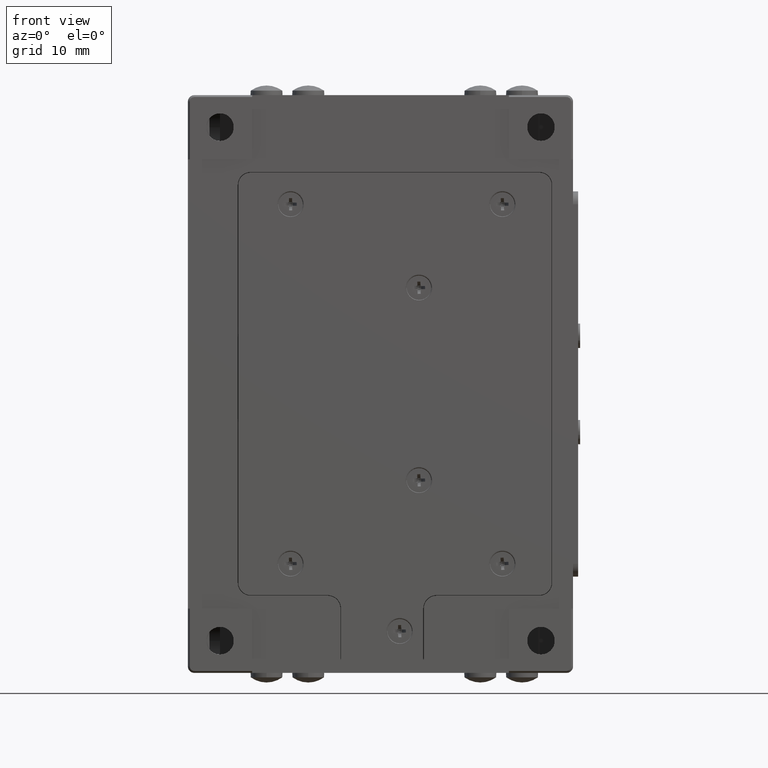
[diagram: clean part render]
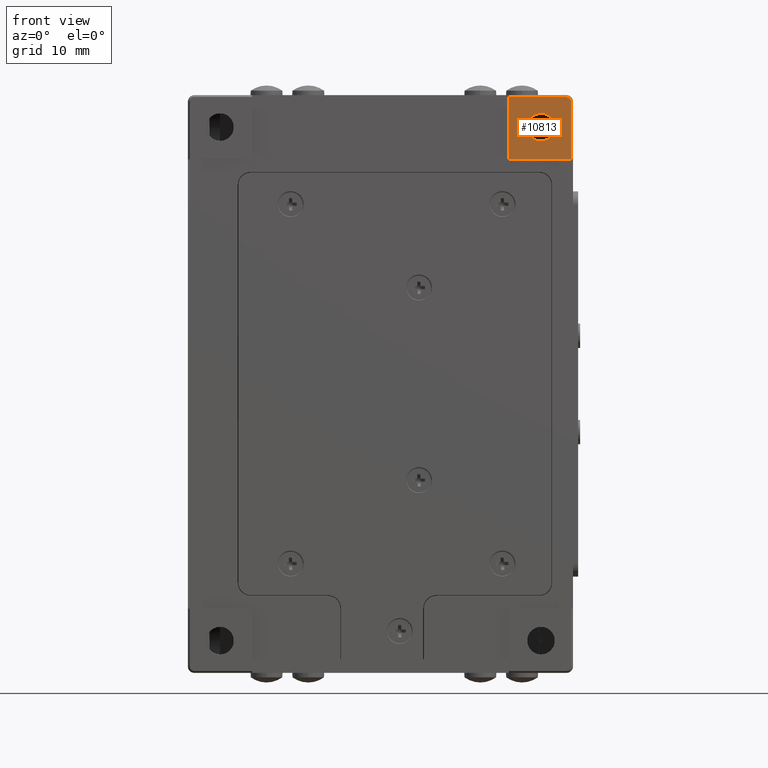
[diagram: same view with one face highlighted and labeled with its STEP entity id]
A machine part, front view. The second image highlights one B-rep face of the part: STEP entity #10813.
In plain terms, the highlighted planar face has unit normal (0, -1, 0).
Its self-contained STEP definition (entity closure, byte-faithful):
#106 = DIRECTION ( 'NONE',  ( 0.000000000000000000, -1.000000000000000000, 0.000000000000000000 ) ) ;
#775 = DIRECTION ( 'NONE',  ( 1.000000000000000000, 0.000000000000000000, 0.000000000000000000 ) ) ;
#1044 = CARTESIAN_POINT ( 'NONE',  ( 59.70000000000000284, -0.2999999999999999889, -10.00000000000000000 ) ) ;
#1323 = VERTEX_POINT ( 'NONE', #21214 ) ;
#1619 = CIRCLE ( 'NONE', #25850, 2.149999999999999911 ) ;
#1706 = VECTOR ( 'NONE', #775, 1000.000000000000000 ) ;
#2194 = ORIENTED_EDGE ( 'NONE', *, *, #21853, .T. ) ;
#3065 = DIRECTION ( 'NONE',  ( 0.000000000000000000, 0.000000000000000000, 1.000000000000000000 ) ) ;
#3153 = DIRECTION ( 'NONE',  ( 0.000000000000000000, 0.000000000000000000, 1.000000000000000000 ) ) ;
#3450 = CARTESIAN_POINT ( 'NONE',  ( 50.00000000000000000, -0.2999999999999999889, -0.3000000000000084821 ) ) ;
#4310 = PLANE ( 'NONE',  #23858 ) ;
#4477 = VERTEX_POINT ( 'NONE', #18415 ) ;
#4717 = CIRCLE ( 'NONE', #25386, 0.6999999999999918510 ) ;
#5235 = EDGE_CURVE ( 'NONE', #4477, #9823, #20275, .T. ) ;
#6139 = CARTESIAN_POINT ( 'NONE',  ( 59.70000000000000284, -0.2999999999999999889, 0.000000000000000000 ) ) ;
#6398 = DIRECTION ( 'NONE',  ( 0.000000000000000000, 0.000000000000000000, 1.000000000000000000 ) ) ;
#6901 = CARTESIAN_POINT ( 'NONE',  ( 59.00000000000000000, -0.2999999999999999889, -1.000000000000000000 ) ) ;
#6978 = CARTESIAN_POINT ( 'NONE',  ( 0.000000000000000000, -0.2999999999999999889, 0.000000000000000000 ) ) ;
#7503 = VECTOR ( 'NONE', #6398, 1000.000000000000000 ) ;
#7924 = VERTEX_POINT ( 'NONE', #24396 ) ;
#8103 = DIRECTION ( 'NONE',  ( -1.000000000000000000, 0.000000000000000000, 0.000000000000000000 ) ) ;
#8743 = VECTOR ( 'NONE', #8103, 1000.000000000000000 ) ;
#9584 = EDGE_LOOP ( 'NONE', ( #27464, #20246, #12364, #2194, #23077 ) ) ;
#9632 = ORIENTED_EDGE ( 'NONE', *, *, #21312, .T. ) ;
#9823 = VERTEX_POINT ( 'NONE', #11905 ) ;
#10813 = ADVANCED_FACE ( 'NONE', ( #17677, #19646 ), #4310, .T. ) ;
#11905 = CARTESIAN_POINT ( 'NONE',  ( 50.00000000000000000, -0.2999999999999999889, -10.00000000000000000 ) ) ;
#11934 = CIRCLE ( 'NONE', #15505, 2.149999999999999911 ) ;
#12094 = DIRECTION ( 'NONE',  ( 0.000000000000000000, 1.000000000000000000, 0.000000000000000000 ) ) ;
#12364 = ORIENTED_EDGE ( 'NONE', *, *, #22588, .T. ) ;
#13127 = VERTEX_POINT ( 'NONE', #24443 ) ;
#13409 = DIRECTION ( 'NONE',  ( 0.000000000000000000, 0.000000000000000000, -1.000000000000000000 ) ) ;
#13556 = ORIENTED_EDGE ( 'NONE', *, *, #14076, .T. ) ;
#13758 = VERTEX_POINT ( 'NONE', #25804 ) ;
#14076 = EDGE_CURVE ( 'NONE', #13127, #7924, #11934, .T. ) ;
#14131 = LINE ( 'NONE', #17938, #1706 ) ;
#14132 = DIRECTION ( 'NONE',  ( 0.000000000000000000, 1.000000000000000000, 0.000000000000000000 ) ) ;
#14196 = CARTESIAN_POINT ( 'NONE',  ( 55.00000000000000000, -0.2999999999999999889, -5.000000000000000000 ) ) ;
#15489 = DIRECTION ( 'NONE',  ( 0.000000000000000000, -1.000000000000000000, 0.000000000000000000 ) ) ;
#15505 = AXIS2_PLACEMENT_3D ( 'NONE', #25094, #14132, #3153 ) ;
#15647 = CARTESIAN_POINT ( 'NONE',  ( 50.00000000000000000, -0.2999999999999999889, -1.224646799147351876E-15 ) ) ;
#17677 = FACE_OUTER_BOUND ( 'NONE', #9584, .T. ) ;
#17938 = CARTESIAN_POINT ( 'NONE',  ( 50.00000000000000000, -0.2999999999999999889, -10.00000000000000000 ) ) ;
#18228 = LINE ( 'NONE', #3450, #8743 ) ;
#18415 = CARTESIAN_POINT ( 'NONE',  ( 50.00000000000000000, -0.2999999999999999889, -0.3000000000000084821 ) ) ;
#19646 = FACE_BOUND ( 'NONE', #25461, .T. ) ;
#20246 = ORIENTED_EDGE ( 'NONE', *, *, #20291, .T. ) ;
#20275 = LINE ( 'NONE', #15647, #21787 ) ;
#20291 = EDGE_CURVE ( 'NONE', #24864, #13758, #25398, .T. ) ;
#20525 = EDGE_CURVE ( 'NONE', #9823, #24864, #14131, .T. ) ;
#21214 = CARTESIAN_POINT ( 'NONE',  ( 59.00000000000000000, -0.2999999999999999889, -0.3000000000000084821 ) ) ;
#21312 = EDGE_CURVE ( 'NONE', #7924, #13127, #1619, .T. ) ;
#21787 = VECTOR ( 'NONE', #22107, 1000.000000000000000 ) ;
#21853 = EDGE_CURVE ( 'NONE', #1323, #4477, #18228, .T. ) ;
#22107 = DIRECTION ( 'NONE',  ( 0.000000000000000000, 0.000000000000000000, -1.000000000000000000 ) ) ;
#22588 = EDGE_CURVE ( 'NONE', #13758, #1323, #4717, .T. ) ;
#23077 = ORIENTED_EDGE ( 'NONE', *, *, #5235, .T. ) ;
#23858 = AXIS2_PLACEMENT_3D ( 'NONE', #6978, #106, #25830 ) ;
#24396 = CARTESIAN_POINT ( 'NONE',  ( 55.00000000000000000, -0.2999999999999999889, -2.850000000000000089 ) ) ;
#24443 = CARTESIAN_POINT ( 'NONE',  ( 55.00000000000000000, -0.2999999999999999889, -7.150000000000000355 ) ) ;
#24864 = VERTEX_POINT ( 'NONE', #1044 ) ;
#25094 = CARTESIAN_POINT ( 'NONE',  ( 55.00000000000000000, -0.2999999999999999889, -5.000000000000000000 ) ) ;
#25386 = AXIS2_PLACEMENT_3D ( 'NONE', #6901, #15489, #13409 ) ;
#25398 = LINE ( 'NONE', #6139, #7503 ) ;
#25461 = EDGE_LOOP ( 'NONE', ( #9632, #13556 ) ) ;
#25804 = CARTESIAN_POINT ( 'NONE',  ( 59.70000000000000284, -0.2999999999999999889, -1.000000000000000000 ) ) ;
#25830 = DIRECTION ( 'NONE',  ( 0.000000000000000000, 0.000000000000000000, -1.000000000000000000 ) ) ;
#25850 = AXIS2_PLACEMENT_3D ( 'NONE', #14196, #12094, #3065 ) ;
#27464 = ORIENTED_EDGE ( 'NONE', *, *, #20525, .T. ) ;